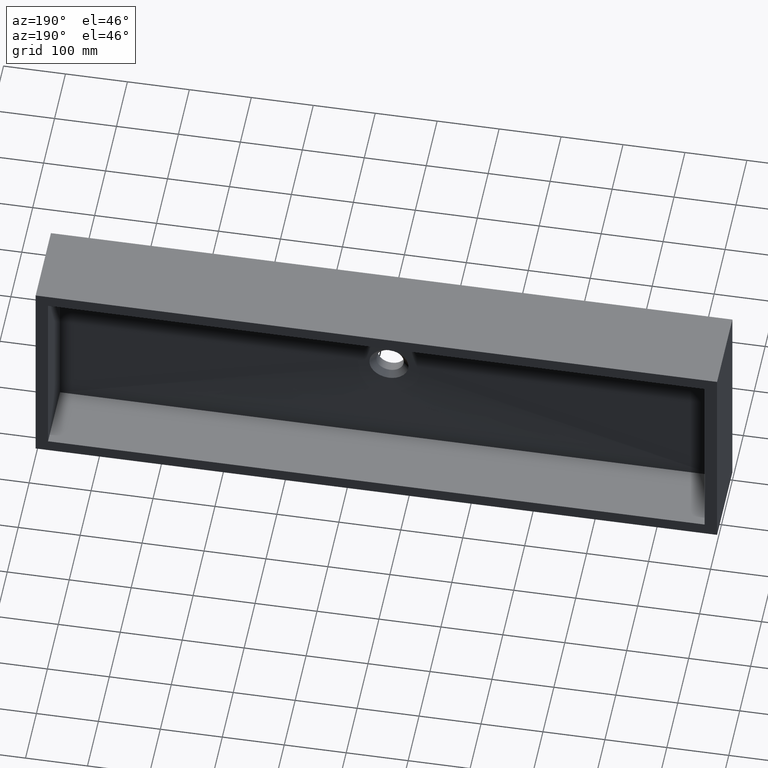
[diagram: clean part render]
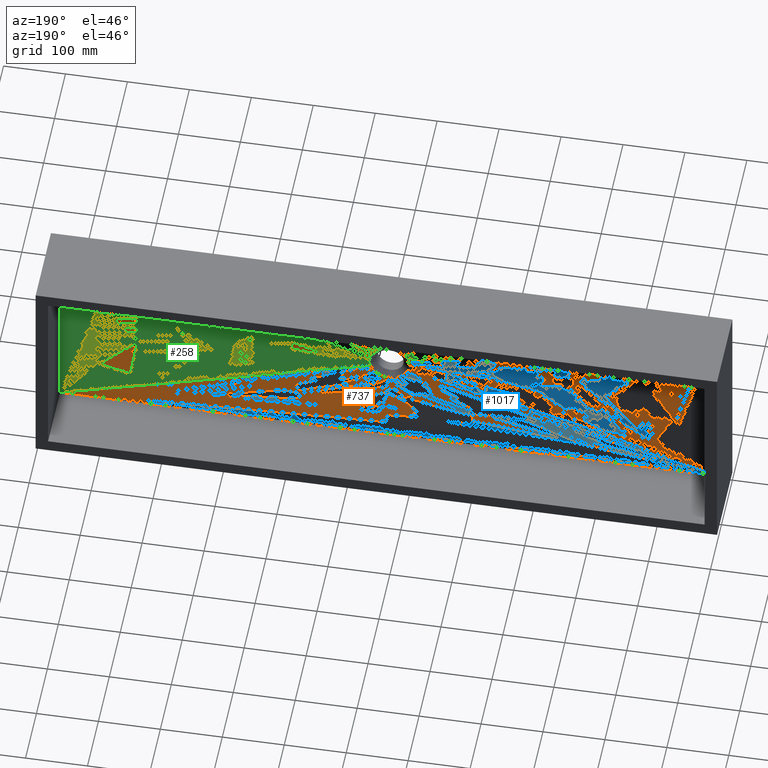
[diagram: same view with three faces highlighted in distinct colors, each labeled with its STEP entity id]
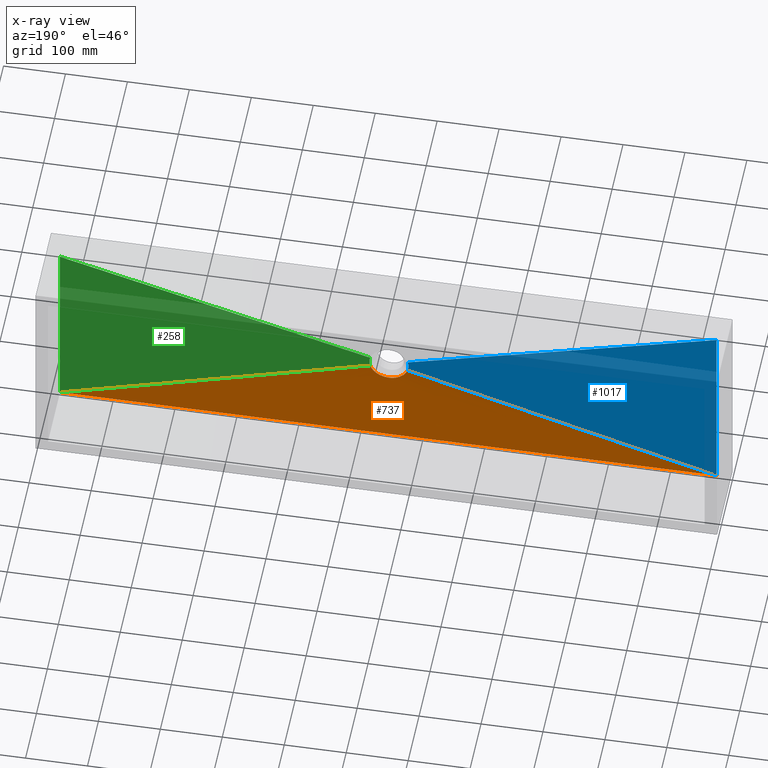
[diagram: x-ray of the same camera — body ghosted, the three highlighted faces saturated]
A machine part, auxiliary view with three faces highlighted in distinct colors.
The next image is the same camera in x-ray (body ghosted, the three faces saturated) — at least one of them is partly hidden behind the body in this view.
Their STEP definitions:

[orange] entity #737 — the highlighted face is a freeform B-spline surface patch.
#10 = CARTESIAN_POINT ( 'NONE',  ( 792.9166666666742500, 30.00000000000000000, -330.0000000000000600 ) ) ;
#23 = CARTESIAN_POINT ( 'NONE',  ( 726.6666666666752700, 30.00000000000000000, -330.0000000000000600 ) ) ;
#29 = CARTESIAN_POINT ( 'NONE',  ( 579.8800017830241100, 25.00000000000000400, -185.0509910874881400 ) ) ;
#69 = FACE_OUTER_BOUND ( 'NONE', #116, .T. ) ;
#75 = VERTEX_POINT ( 'NONE', #594 ) ;
#82 = CARTESIAN_POINT ( 'NONE',  ( 519.7663969215753900, 25.00000000000000000, -183.8419027870864100 ) ) ;
#86 = VECTOR ( 'NONE', #153, 1000.000000000000100 ) ;
#105 = CARTESIAN_POINT ( 'NONE',  ( 559.6316530607051600, 24.99999999999999300, -205.0515115678225000 ) ) ;
#115 = CARTESIAN_POINT ( 'NONE',  ( 527.9166666666761800, 30.00000000000000000, -329.9999999999999400 ) ) ;
#116 = EDGE_LOOP ( 'NONE', ( #443, #715, #272, #596, #230 ) ) ;
#119 = CARTESIAN_POINT ( 'NONE',  ( 577.6864681338539600, 24.99999999999999600, -190.0978275173605400 ) ) ;
#122 = CARTESIAN_POINT ( 'NONE',  ( 550.0000000000094400, 30.00000000000000000, -329.9999999999999400 ) ) ;
#135 = B_SPLINE_CURVE_WITH_KNOTS ( 'NONE', 3,
 ( #991, #188, #177, #576, #105, #1103, #786, #498, #798, #649, #644, #245, #547, #829, #859, #213, #183, #216 ),
 .UNSPECIFIED., .F., .F.,
 ( 4, 2, 2, 2, 2, 2, 2, 2, 4 ),
 ( 0.5000000000000000000, 0.5625000000000000000, 0.6250000000000000000, 0.6875000000000000000, 0.7500000000000000000, 0.8125000000000000000, 0.8750000000000000000, 0.9375000000000000000, 1.000000000000000000 ),
 .UNSPECIFIED. ) ;
#153 = DIRECTION ( 'NONE',  ( -0.9597526761137362700, 0.009602012880673358900, -0.2806823864106209300 ) ) ;
#167 = CARTESIAN_POINT ( 'NONE',  ( 1057.916666666667400, 30.00000000000000400, -329.9999999999999400 ) ) ;
#177 = CARTESIAN_POINT ( 'NONE',  ( 553.9342319692041200, 24.99999999999999300, -206.3141326983282500 ) ) ;
#182 = CARTESIAN_POINT ( 'NONE',  ( 903.3333333333386000, 30.00000000000000000, -330.0000000000000600 ) ) ;
#183 = CARTESIAN_POINT ( 'NONE',  ( 579.8800017830241100, 25.00000000000000400, -185.0509910874881400 ) ) ;
#188 = CARTESIAN_POINT ( 'NONE',  ( 551.9672648684847900, 25.00000000000000000, -206.5000000000001400 ) ) ;
#191 = CARTESIAN_POINT ( 'NONE',  ( 572.0008081009467600, 25.00000000000000400, -197.6095162926251000 ) ) ;
#193 = CARTESIAN_POINT ( 'NONE',  ( 704.5833333333422400, 30.00000000000000000, -330.0000000000000600 ) ) ;
#197 = CARTESIAN_POINT ( 'NONE',  ( 563.1749402788499300, 25.00000000000000000, -203.6754779705848400 ) ) ;
#199 = CARTESIAN_POINT ( 'NONE',  ( 830.1168015392123600, 27.50000000000000400, -256.9209513935431900 ) ) ;
#213 = CARTESIAN_POINT ( 'NONE',  ( 579.4379440952338900, 24.99999999999999300, -186.2938029942921800 ) ) ;
#216 = CARTESIAN_POINT ( 'NONE',  ( 580.2336030784246100, 25.00000000000000000, -183.8419027870864400 ) ) ;
#219 = CARTESIAN_POINT ( 'NONE',  ( 578.3412748311466200, 24.99999999999999300, -188.8171878315881400 ) ) ;
#230 = ORIENTED_EDGE ( 'NONE', *, *, #923, .F. ) ;
#233 = CARTESIAN_POINT ( 'NONE',  ( 269.8831984607877500, 27.50000000000000400, -256.9209513935431900 ) ) ;
#245 = CARTESIAN_POINT ( 'NONE',  ( 575.2324533602090900, 24.99999999999999600, -193.9255402298447000 ) ) ;
#257 = VERTEX_POINT ( 'NONE', #863 ) ;
#261 = CARTESIAN_POINT ( 'NONE',  ( 576.1321890236695300, 24.99999999999998900, -192.6520143412044200 ) ) ;
#263 = CARTESIAN_POINT ( 'NONE',  ( 559.6316530607051600, 24.99999999999999300, -205.0515115678225000 ) ) ;
#267 = CARTESIAN_POINT ( 'NONE',  ( 991.6666666666695800, 30.00000000000000400, -329.9999999999999400 ) ) ;
#271 = CARTESIAN_POINT ( 'NONE',  ( 130.4166666666702700, 30.00000000000000700, -330.0000000000000600 ) ) ;
#272 = ORIENTED_EDGE ( 'NONE', *, *, #289, .T. ) ;
#274 = CARTESIAN_POINT ( 'NONE',  ( 575.2324533602090900, 24.99999999999999600, -193.9255402298447000 ) ) ;
#277 = CARTESIAN_POINT ( 'NONE',  ( 522.3135318661460400, 24.99999999999999300, -190.0978275173605100 ) ) ;
#282 = CARTESIAN_POINT ( 'NONE',  ( 240.8333333333396500, 30.00000000000000700, -330.0000000000000600 ) ) ;
#287 = CARTESIAN_POINT ( 'NONE',  ( 660.4166666666758400, 30.00000000000000000, -330.0000000000000600 ) ) ;
#289 = EDGE_CURVE ( 'NONE', #75, #722, #756, .T. ) ;
#298 = CARTESIAN_POINT ( 'NONE',  ( 505.8333333333428100, 30.00000000000000000, -329.9999999999999400 ) ) ;
#305 = CARTESIAN_POINT ( 'NONE',  ( 549.9999999999998900, 24.99999999999999600, -206.5000000000002000 ) ) ;
#308 = CARTESIAN_POINT ( 'NONE',  ( 546.0657680307959900, 25.00000000000000000, -206.3141326983282200 ) ) ;
#310 = CARTESIAN_POINT ( 'NONE',  ( 540.3683469392949500, 25.00000000000000000, -205.0515115678225000 ) ) ;
#312 = CARTESIAN_POINT ( 'NONE',  ( 542.2333276410685100, 24.99999999999999600, -205.5897350152795600 ) ) ;
#316 = CARTESIAN_POINT ( 'NONE',  ( 548.0327351315149800, 24.99999999999999600, -206.5000000000002600 ) ) ;
#318 = CARTESIAN_POINT ( 'NONE',  ( 530.5997014642238100, 25.00000000000000000, -199.8767803544575100 ) ) ;
#322 = CARTESIAN_POINT ( 'NONE',  ( 1035.833333333334800, 30.00000000000000400, -329.9999999999999400 ) ) ;
#329 = CARTESIAN_POINT ( 'NONE',  ( 532.0343309431588100, 24.99999999999999600, -200.9385622427755900 ) ) ;
#333 = CARTESIAN_POINT ( 'NONE',  ( 527.9991918990533600, 25.00000000000000400, -197.6095162926251300 ) ) ;
#341 = CARTESIAN_POINT ( 'NONE',  ( 523.8678109763305900, 25.00000000000000000, -192.6520143412044500 ) ) ;
#352 = CARTESIAN_POINT ( 'NONE',  ( 580.2336030784246100, 25.00000000000000000, -183.8419027870864400 ) ) ;
#356 = CARTESIAN_POINT ( 'NONE',  ( 859.1666666666731100, 30.00000000000000000, -330.0000000000000600 ) ) ;
#360 = CARTESIAN_POINT ( 'NONE',  ( 1080.000000000000000, 30.00000000000000400, -329.9999999999999400 ) ) ;
#366 = CARTESIAN_POINT ( 'NONE',  ( 523.8678109763305900, 25.00000000000000000, -192.6520143412044500 ) ) ;
#369 = EDGE_CURVE ( 'NONE', #529, #722, #1052, .T. ) ;
#372 = CARTESIAN_POINT ( 'NONE',  ( 520.5620559047663400, 24.99999999999999300, -186.2938029942921200 ) ) ;
#373 = CARTESIAN_POINT ( 'NONE',  ( 521.6587251688532700, 25.00000000000000000, -188.8171878315881400 ) ) ;
#381 = CARTESIAN_POINT ( 'NONE',  ( 535.1469947103861400, 25.00000000000000400, -202.8381484612212900 ) ) ;
#386 = CARTESIAN_POINT ( 'NONE',  ( 461.6666666666759500, 30.00000000000000000, -329.9999999999999400 ) ) ;
#400 = CARTESIAN_POINT ( 'NONE',  ( 526.8330937578005000, 24.99999999999999300, -196.4043741027793100 ) ) ;
#411 = CARTESIAN_POINT ( 'NONE',  ( 64.16666666666822000, 30.00000000000000700, -329.9999999999999400 ) ) ;
#423 = CARTESIAN_POINT ( 'NONE',  ( 551.9672648684847900, 25.00000000000000000, -206.5000000000002000 ) ) ;
#425 = CARTESIAN_POINT ( 'NONE',  ( 329.1666666666745300, 30.00000000000000000, -330.0000000000000600 ) ) ;
#426 = CARTESIAN_POINT ( 'NONE',  ( 536.8250597211501800, 24.99999999999999300, -203.6754779705848600 ) ) ;
#427 = CARTESIAN_POINT ( 'NONE',  ( 524.7675466397910200, 24.99999999999999300, -193.9255402298446700 ) ) ;
#435 = CARTESIAN_POINT ( 'NONE',  ( 524.7675466397910200, 24.99999999999999300, -193.9255402298446700 ) ) ;
#439 = CARTESIAN_POINT ( 'NONE',  ( 535.1469947103861400, 25.00000000000000400, -202.8381484612212900 ) ) ;
#443 = ORIENTED_EDGE ( 'NONE', *, *, #625, .T. ) ;
#449 = CARTESIAN_POINT ( 'NONE',  ( 20.00000000000001800, 30.00000000000000400, -329.9999999999999400 ) ) ;
#469 = CARTESIAN_POINT ( 'NONE',  ( 1080.000000000000000, 30.00000000000002800, -329.9999999999999400 ) ) ;
#473 = LINE ( 'NONE', #233, #86 ) ;
#474 = CARTESIAN_POINT ( 'NONE',  ( 548.0327351315149800, 24.99999999999999600, -206.5000000000002000 ) ) ;
#475 = B_SPLINE_SURFACE_WITH_KNOTS ( 'NONE', 3, 1, ( 
 ( #352, #360 ),
 ( #29, #167 ),
 ( #931, #322 ),
 ( #219, #267 ),
 ( #119, #554 ),
 ( #261, #581 ),
 ( #274, #182 ),
 ( #1111, #356 ),
 ( #191, #883 ),
 ( #909, #10 ),
 ( #1039, #559 ),
 ( #1074, #23 ),
 ( #197, #193 ),
 ( #263, #287 ),
 ( #525, #903 ),
 ( #876, #925 ),
 ( #423, #976 ),
 ( #474, #115 ),
 ( #578, #298 ),
 ( #1131, #386 ),
 ( #583, #735 ),
 ( #1083, #671 ),
 ( #381, #1086 ),
 ( #593, #425 ),
 ( #567, #871 ),
 ( #845, #585 ),
 ( #400, #282 ),
 ( #435, #494 ),
 ( #366, #796 ),
 ( #277, #271 ),
 ( #686, #1088 ),
 ( #610, #411 ),
 ( #1046, #1153 ),
 ( #500, #449 ) ),
 .UNSPECIFIED., .F., .F., .F.,
 ( 4, 2, 2, 2, 2, 2, 2, 2, 2, 2, 2, 2, 2, 2, 2, 2, 4 ),
 ( 2, 2 ),
 ( 0.0000000000000000000, 0.06250000000000000000, 0.1250000000000000000, 0.1875000000000000000, 0.2500000000000000000, 0.3125000000000000000, 0.3750000000000000000, 0.4375000000000000000, 0.5000000000000000000, 0.5625000000000000000, 0.6250000000000000000, 0.6875000000000000000, 0.7500000000000000000, 0.8125000000000000000, 0.8750000000000000000, 0.9375000000000000000, 1.000000000000000000 ),
 ( 0.0000000000000000000, 1.000000000000000000 ),
 .UNSPECIFIED. ) ;
#494 = CARTESIAN_POINT ( 'NONE',  ( 196.6666666666719700, 30.00000000000000700, -330.0000000000000600 ) ) ;
#498 = CARTESIAN_POINT ( 'NONE',  ( 567.9656690568416500, 25.00000000000000400, -200.9385622427756200 ) ) ;
#500 = CARTESIAN_POINT ( 'NONE',  ( 519.7663969215753900, 25.00000000000000000, -183.8419027870864100 ) ) ;
#525 = CARTESIAN_POINT ( 'NONE',  ( 557.7666723589319400, 25.00000000000000000, -205.5897350152796400 ) ) ;
#529 = VERTEX_POINT ( 'NONE', #659 ) ;
#547 = CARTESIAN_POINT ( 'NONE',  ( 576.1321890236695300, 24.99999999999998900, -192.6520143412044200 ) ) ;
#554 = CARTESIAN_POINT ( 'NONE',  ( 969.5833333333369000, 30.00000000000000400, -330.0000000000000000 ) ) ;
#559 = CARTESIAN_POINT ( 'NONE',  ( 770.8333333333412200, 30.00000000000000000, -330.0000000000000600 ) ) ;
#567 = CARTESIAN_POINT ( 'NONE',  ( 530.5997014642238100, 25.00000000000000000, -199.8767803544575100 ) ) ;
#576 = CARTESIAN_POINT ( 'NONE',  ( 557.7666723589319400, 25.00000000000000000, -205.5897350152796400 ) ) ;
#578 = CARTESIAN_POINT ( 'NONE',  ( 546.0657680307958800, 25.00000000000000000, -206.3141326983282200 ) ) ;
#581 = CARTESIAN_POINT ( 'NONE',  ( 925.4166666666714000, 30.00000000000000400, -330.0000000000000600 ) ) ;
#583 = CARTESIAN_POINT ( 'NONE',  ( 540.3683469392949500, 25.00000000000000000, -205.0515115678225000 ) ) ;
#585 = CARTESIAN_POINT ( 'NONE',  ( 262.9166666666733900, 30.00000000000000700, -330.0000000000000600 ) ) ;
#593 = CARTESIAN_POINT ( 'NONE',  ( 532.0343309431588100, 24.99999999999999600, -200.9385622427755900 ) ) ;
#594 = CARTESIAN_POINT ( 'NONE',  ( 580.2336030784246100, 25.00000000000000000, -183.8419027870864400 ) ) ;
#596 = ORIENTED_EDGE ( 'NONE', *, *, #369, .F. ) ;
#597 = CARTESIAN_POINT ( 'NONE',  ( 526.8330937578005000, 24.99999999999999300, -196.4043741027793100 ) ) ;
#610 = CARTESIAN_POINT ( 'NONE',  ( 520.5620559047663400, 24.99999999999999300, -186.2938029942921200 ) ) ;
#625 = EDGE_CURVE ( 'NONE', #636, #257, #1047, .T. ) ;
#636 = VERTEX_POINT ( 'NONE', #82 ) ;
#644 = CARTESIAN_POINT ( 'NONE',  ( 573.1669062421995000, 24.99999999999999300, -196.4043741027793100 ) ) ;
#649 = CARTESIAN_POINT ( 'NONE',  ( 572.0008081009467600, 25.00000000000000400, -197.6095162926251000 ) ) ;
#659 = CARTESIAN_POINT ( 'NONE',  ( 20.00000000000001800, 30.00000000000002800, -329.9999999999999400 ) ) ;
#671 = CARTESIAN_POINT ( 'NONE',  ( 395.4166666666753300, 30.00000000000000000, -330.0000000000000600 ) ) ;
#686 = CARTESIAN_POINT ( 'NONE',  ( 521.6587251688532700, 25.00000000000000000, -188.8171878315881400 ) ) ;
#705 = DIRECTION ( 'NONE',  ( 0.9597526761137362700, 0.009602012880673358900, -0.2806823864106208800 ) ) ;
#715 = ORIENTED_EDGE ( 'NONE', *, *, #1060, .T. ) ;
#722 = VERTEX_POINT ( 'NONE', #469 ) ;
#735 = CARTESIAN_POINT ( 'NONE',  ( 439.5833333333424100, 30.00000000000000000, -330.0000000000000000 ) ) ;
#737 = ADVANCED_FACE ( 'NONE', ( #69 ), #475, .F. ) ;
#756 = LINE ( 'NONE', #199, #822 ) ;
#786 = CARTESIAN_POINT ( 'NONE',  ( 564.8530052896138600, 25.00000000000000400, -202.8381484612212700 ) ) ;
#791 = VECTOR ( 'NONE', #1138, 1000.000000000000000 ) ;
#796 = CARTESIAN_POINT ( 'NONE',  ( 174.5833333333381200, 30.00000000000001100, -330.0000000000000600 ) ) ;
#798 = CARTESIAN_POINT ( 'NONE',  ( 569.4002985357764100, 25.00000000000000400, -199.8767803544575100 ) ) ;
#822 = VECTOR ( 'NONE', #705, 1000.000000000000100 ) ;
#829 = CARTESIAN_POINT ( 'NONE',  ( 577.6864681338539600, 24.99999999999999600, -190.0978275173605400 ) ) ;
#839 = CARTESIAN_POINT ( 'NONE',  ( 520.1199982169761100, 25.00000000000000400, -185.0509910874882000 ) ) ;
#845 = CARTESIAN_POINT ( 'NONE',  ( 527.9991918990533600, 25.00000000000000400, -197.6095162926251300 ) ) ;
#859 = CARTESIAN_POINT ( 'NONE',  ( 578.3412748311466200, 24.99999999999999300, -188.8171878315881400 ) ) ;
#863 = CARTESIAN_POINT ( 'NONE',  ( 549.9999999999998900, 24.99999999999999600, -206.5000000000002000 ) ) ;
#871 = CARTESIAN_POINT ( 'NONE',  ( 307.0833333333408700, 30.00000000000000400, -330.0000000000000600 ) ) ;
#876 = CARTESIAN_POINT ( 'NONE',  ( 553.9342319692041200, 24.99999999999999300, -206.3141326983282500 ) ) ;
#883 = CARTESIAN_POINT ( 'NONE',  ( 837.0833333333401900, 30.00000000000000000, -330.0000000000000600 ) ) ;
#893 = CARTESIAN_POINT ( 'NONE',  ( 522.3135318661460400, 24.99999999999999300, -190.0978275173605100 ) ) ;
#903 = CARTESIAN_POINT ( 'NONE',  ( 638.3333333333426900, 30.00000000000000000, -330.0000000000000600 ) ) ;
#909 = CARTESIAN_POINT ( 'NONE',  ( 569.4002985357764100, 25.00000000000000400, -199.8767803544575100 ) ) ;
#923 = EDGE_CURVE ( 'NONE', #636, #529, #473, .T. ) ;
#925 = CARTESIAN_POINT ( 'NONE',  ( 594.1666666666761800, 30.00000000000000000, -329.9999999999999400 ) ) ;
#931 = CARTESIAN_POINT ( 'NONE',  ( 579.4379440952338900, 24.99999999999999300, -186.2938029942921800 ) ) ;
#976 = CARTESIAN_POINT ( 'NONE',  ( 572.0833333333428100, 30.00000000000000000, -329.9999999999999400 ) ) ;
#991 = CARTESIAN_POINT ( 'NONE',  ( 549.9999999999998900, 24.99999999999999600, -206.5000000000002000 ) ) ;
#1039 = CARTESIAN_POINT ( 'NONE',  ( 567.9656690568416500, 25.00000000000000400, -200.9385622427756200 ) ) ;
#1046 = CARTESIAN_POINT ( 'NONE',  ( 520.1199982169761100, 25.00000000000000400, -185.0509910874882000 ) ) ;
#1047 = B_SPLINE_CURVE_WITH_KNOTS ( 'NONE', 3,
 ( #1075, #839, #372, #373, #893, #341, #427, #597, #333, #318, #329, #439, #426, #310, #312, #308, #316, #305 ),
 .UNSPECIFIED., .F., .F.,
 ( 4, 2, 2, 2, 2, 2, 2, 2, 4 ),
 ( 0.0000000000000000000, 0.06250000000000000000, 0.1250000000000000000, 0.1875000000000000000, 0.2500000000000000000, 0.3125000000000000000, 0.3750000000000000000, 0.4375000000000000000, 0.5000000000000000000 ),
 .UNSPECIFIED. ) ;
#1052 = LINE ( 'NONE', #122, #791 ) ;
#1060 = EDGE_CURVE ( 'NONE', #257, #75, #135, .T. ) ;
#1074 = CARTESIAN_POINT ( 'NONE',  ( 564.8530052896138600, 25.00000000000000400, -202.8381484612212700 ) ) ;
#1075 = CARTESIAN_POINT ( 'NONE',  ( 519.7663969215753900, 25.00000000000000000, -183.8419027870864100 ) ) ;
#1083 = CARTESIAN_POINT ( 'NONE',  ( 536.8250597211501800, 24.99999999999999300, -203.6754779705848600 ) ) ;
#1086 = CARTESIAN_POINT ( 'NONE',  ( 373.3333333333417800, 30.00000000000000000, -330.0000000000000600 ) ) ;
#1088 = CARTESIAN_POINT ( 'NONE',  ( 108.3333333333362800, 30.00000000000000700, -330.0000000000000600 ) ) ;
#1103 = CARTESIAN_POINT ( 'NONE',  ( 563.1749402788499300, 25.00000000000000000, -203.6754779705848400 ) ) ;
#1111 = CARTESIAN_POINT ( 'NONE',  ( 573.1669062421995000, 24.99999999999999300, -196.4043741027793100 ) ) ;
#1131 = CARTESIAN_POINT ( 'NONE',  ( 542.2333276410685100, 24.99999999999999600, -205.5897350152795600 ) ) ;
#1138 = DIRECTION ( 'NONE',  ( 1.000000000000000000, -0.0000000000000000000, -0.0000000000000000000 ) ) ;
#1153 = CARTESIAN_POINT ( 'NONE',  ( 42.08333333333413900, 30.00000000000000700, -329.9999999999999400 ) ) ;

[blue] entity #1017 — the highlighted face is a freeform B-spline surface patch.
#15 = CARTESIAN_POINT ( 'NONE',  ( 519.7663969215753900, 25.00000000000000000, -183.8419027870864100 ) ) ;
#47 = EDGE_CURVE ( 'NONE', #243, #301, #49, .T. ) ;
#49 = B_SPLINE_CURVE_WITH_KNOTS ( 'NONE', 3,
 ( #512, #265, #321, #128, #784, #1142, #713, #453, #759, #179 ),
 .UNSPECIFIED., .F., .F.,
 ( 4, 2, 2, 2, 4 ),
 ( 0.0000000000000000000, 0.2500000000000000000, 0.5000000000000000000, 0.7500000000000000000, 1.000000000000000000 ),
 .UNSPECIFIED. ) ;
#94 = ORIENTED_EDGE ( 'NONE', *, *, #47, .T. ) ;
#128 = CARTESIAN_POINT ( 'NONE',  ( 518.6082418723955200, 24.99999999999999300, -178.0076832610179200 ) ) ;
#141 = EDGE_LOOP ( 'NONE', ( #94, #824, #370, #954 ) ) ;
#160 = VECTOR ( 'NONE', #376, 1000.000000000000000 ) ;
#165 = CARTESIAN_POINT ( 'NONE',  ( 19.99999999999999600, 30.00000000000000000, -123.3333333333330200 ) ) ;
#179 = CARTESIAN_POINT ( 'NONE',  ( 519.7663969215753900, 25.00000000000000000, -166.1580972129135900 ) ) ;
#201 = VECTOR ( 'NONE', #599, 1000.000000000000100 ) ;
#243 = VERTEX_POINT ( 'NONE', #15 ) ;
#259 = LINE ( 'NONE', #363, #160 ) ;
#265 = CARTESIAN_POINT ( 'NONE',  ( 519.3527501231822000, 25.00000000000000400, -182.4274976054843800 ) ) ;
#285 = CARTESIAN_POINT ( 'NONE',  ( 19.99999999999999600, 30.00000000000000000, -304.1666666666664600 ) ) ;
#301 = VERTEX_POINT ( 'NONE', #992 ) ;
#306 = DIRECTION ( 'NONE',  ( -0.9597526761137362700, 0.009602012880673358900, -0.2806823864106209300 ) ) ;
#321 = CARTESIAN_POINT ( 'NONE',  ( 519.0346489087027100, 25.00000000000000400, -180.9695618543823600 ) ) ;
#363 = CARTESIAN_POINT ( 'NONE',  ( 19.99999999999999600, 30.00000000000000000, -174.9999999999996300 ) ) ;
#368 = CARTESIAN_POINT ( 'NONE',  ( 518.6082418723955200, 24.99999999999999300, -178.0076832610179200 ) ) ;
#370 = ORIENTED_EDGE ( 'NONE', *, *, #808, .T. ) ;
#376 = DIRECTION ( 'NONE',  ( 1.343011723336875100E-016, 1.343011723336875100E-016, -1.000000000000000000 ) ) ;
#385 = CARTESIAN_POINT ( 'NONE',  ( 518.4999999999998900, 25.00000000000000400, -176.5038807818566500 ) ) ;
#395 = LINE ( 'NONE', #448, #417 ) ;
#417 = VECTOR ( 'NONE', #306, 1000.000000000000100 ) ;
#448 = CARTESIAN_POINT ( 'NONE',  ( 269.8831984607877500, 27.50000000000000400, -256.9209513935431900 ) ) ;
#453 = CARTESIAN_POINT ( 'NONE',  ( 519.0346489087027100, 25.00000000000000400, -169.0304381456176700 ) ) ;
#478 = CARTESIAN_POINT ( 'NONE',  ( 20.00000000000000000, 30.00000000000000400, -20.00000000000001800 ) ) ;
#493 = CARTESIAN_POINT ( 'NONE',  ( 19.99999999999999600, 30.00000000000000000, -71.66666666666647200 ) ) ;
#512 = CARTESIAN_POINT ( 'NONE',  ( 519.7663969215753900, 25.00000000000000000, -183.8419027870864100 ) ) ;
#533 = CARTESIAN_POINT ( 'NONE',  ( 20.00000000000001800, 30.00000000000000400, -329.9999999999999400 ) ) ;
#552 = CARTESIAN_POINT ( 'NONE',  ( 19.99999999999999600, 30.00000000000000000, -200.8333333333329400 ) ) ;
#563 = EDGE_CURVE ( 'NONE', #985, #301, #643, .T. ) ;
#569 = CARTESIAN_POINT ( 'NONE',  ( 519.3527501231822000, 25.00000000000000400, -182.4274976054843800 ) ) ;
#570 = CARTESIAN_POINT ( 'NONE',  ( 20.00000000000000000, 30.00000000000000400, -20.00000000000000000 ) ) ;
#599 = DIRECTION ( 'NONE',  ( 0.9597526761137362700, -0.009602012880673358900, -0.2806823864106210400 ) ) ;
#638 = CARTESIAN_POINT ( 'NONE',  ( 518.6082418723955200, 25.00000000000000400, -171.9923167389820000 ) ) ;
#641 = CARTESIAN_POINT ( 'NONE',  ( 19.99999999999999600, 30.00000000000000000, -278.3333333333330900 ) ) ;
#643 = LINE ( 'NONE', #1070, #201 ) ;
#690 = FACE_OUTER_BOUND ( 'NONE', #141, .T. ) ;
#707 = CARTESIAN_POINT ( 'NONE',  ( 519.0346489087027100, 25.00000000000000400, -180.9695618543823600 ) ) ;
#709 = CARTESIAN_POINT ( 'NONE',  ( 19.99999999999999600, 30.00000000000000000, -149.1666666666663200 ) ) ;
#713 = CARTESIAN_POINT ( 'NONE',  ( 518.6082418723955200, 25.00000000000000400, -171.9923167389820000 ) ) ;
#720 = CARTESIAN_POINT ( 'NONE',  ( 19.99999999999999600, 30.00000000000000000, -226.6666666666662900 ) ) ;
#721 = CARTESIAN_POINT ( 'NONE',  ( 518.5000000000000000, 25.00000000000000400, -173.4961192181434600 ) ) ;
#728 = CARTESIAN_POINT ( 'NONE',  ( 20.00000000000000000, 30.00000000000000400, -329.9999999999999400 ) ) ;
#730 = CARTESIAN_POINT ( 'NONE',  ( 519.7663969215753900, 25.00000000000000000, -183.8419027870864100 ) ) ;
#759 = CARTESIAN_POINT ( 'NONE',  ( 519.3527501231825500, 25.00000000000000400, -167.5725023945156200 ) ) ;
#784 = CARTESIAN_POINT ( 'NONE',  ( 518.4999999999998900, 25.00000000000000400, -176.5038807818566500 ) ) ;
#808 = EDGE_CURVE ( 'NONE', #985, #980, #259, .T. ) ;
#824 = ORIENTED_EDGE ( 'NONE', *, *, #563, .F. ) ;
#849 = B_SPLINE_SURFACE_WITH_KNOTS ( 'NONE', 3, 1, ( 
 ( #730, #728 ),
 ( #569, #285 ),
 ( #707, #641 ),
 ( #368, #720 ),
 ( #385, #552 ),
 ( #721, #709 ),
 ( #638, #165 ),
 ( #897, #493 ),
 ( #942, #1140 ),
 ( #1159, #478 ) ),
 .UNSPECIFIED., .F., .F., .F.,
 ( 4, 2, 2, 2, 4 ),
 ( 2, 2 ),
 ( 0.0000000000000000000, 0.2500000000000000000, 0.5000000000000000000, 0.7500000000000000000, 1.000000000000000000 ),
 ( 0.0000000000000000000, 1.000000000000000000 ),
 .UNSPECIFIED. ) ;
#897 = CARTESIAN_POINT ( 'NONE',  ( 519.0346489087027100, 25.00000000000000400, -169.0304381456176700 ) ) ;
#942 = CARTESIAN_POINT ( 'NONE',  ( 519.3527501231825500, 25.00000000000000400, -167.5725023945156200 ) ) ;
#949 = EDGE_CURVE ( 'NONE', #243, #980, #395, .T. ) ;
#954 = ORIENTED_EDGE ( 'NONE', *, *, #949, .F. ) ;
#980 = VERTEX_POINT ( 'NONE', #533 ) ;
#985 = VERTEX_POINT ( 'NONE', #570 ) ;
#992 = CARTESIAN_POINT ( 'NONE',  ( 519.7663969215753900, 25.00000000000000000, -166.1580972129135900 ) ) ;
#1017 = ADVANCED_FACE ( 'NONE', ( #690 ), #849, .T. ) ;
#1070 = CARTESIAN_POINT ( 'NONE',  ( 269.8831984607877500, 27.50000000000000400, -93.07904860645678000 ) ) ;
#1140 = CARTESIAN_POINT ( 'NONE',  ( 19.99999999999999600, 30.00000000000000000, -45.83333333333323600 ) ) ;
#1142 = CARTESIAN_POINT ( 'NONE',  ( 518.5000000000000000, 25.00000000000000400, -173.4961192181434600 ) ) ;
#1159 = CARTESIAN_POINT ( 'NONE',  ( 519.7663969215753900, 25.00000000000000000, -166.1580972129135900 ) ) ;

[green] entity #258 — the highlighted face is a freeform B-spline surface patch.
#16 = B_SPLINE_SURFACE_WITH_KNOTS ( 'NONE', 3, 1, ( 
 ( #495, #802 ),
 ( #754, #775 ),
 ( #406, #611 ),
 ( #145, #203 ),
 ( #137, #32 ),
 ( #76, #46 ),
 ( #1147, #68 ),
 ( #544, #586 ),
 ( #1117, #126 ),
 ( #31, #171 ) ),
 .UNSPECIFIED., .F., .F., .F.,
 ( 4, 2, 2, 2, 4 ),
 ( 2, 2 ),
 ( 0.0000000000000000000, 0.2500000000000000000, 0.5000000000000000000, 0.7500000000000000000, 1.000000000000000000 ),
 ( 0.0000000000000000000, 1.000000000000000000 ),
 .UNSPECIFIED. ) ;
#22 = VERTEX_POINT ( 'NONE', #143 ) ;
#31 = CARTESIAN_POINT ( 'NONE',  ( 580.2336030784246100, 25.00000000000000000, -183.8419027870864400 ) ) ;
#32 = CARTESIAN_POINT ( 'NONE',  ( 1080.000000000000000, 30.00000000000000000, -149.1666666666666000 ) ) ;
#37 = EDGE_LOOP ( 'NONE', ( #144, #1089, #899, #234 ) ) ;
#46 = CARTESIAN_POINT ( 'NONE',  ( 1080.000000000000000, 30.00000000000000000, -200.8333333333332600 ) ) ;
#68 = CARTESIAN_POINT ( 'NONE',  ( 1080.000000000000000, 30.00000000000000000, -226.6666666666666000 ) ) ;
#75 = VERTEX_POINT ( 'NONE', #594 ) ;
#76 = CARTESIAN_POINT ( 'NONE',  ( 581.5000000000003400, 25.00000000000000400, -176.5038807818566500 ) ) ;
#123 = CARTESIAN_POINT ( 'NONE',  ( 1080.000000000000000, 30.00000000000000000, -174.9999999999999400 ) ) ;
#126 = CARTESIAN_POINT ( 'NONE',  ( 1080.000000000000000, 30.00000000000000000, -304.1666666666665700 ) ) ;
#137 = CARTESIAN_POINT ( 'NONE',  ( 581.5000000000002300, 25.00000000000000400, -173.4961192181434100 ) ) ;
#143 = CARTESIAN_POINT ( 'NONE',  ( 1080.000000000000000, 30.00000000000002800, -20.00000000000000000 ) ) ;
#144 = ORIENTED_EDGE ( 'NONE', *, *, #861, .T. ) ;
#145 = CARTESIAN_POINT ( 'NONE',  ( 581.3917581276043600, 24.99999999999999300, -171.9923167389819700 ) ) ;
#171 = CARTESIAN_POINT ( 'NONE',  ( 1080.000000000000000, 30.00000000000000400, -329.9999999999999400 ) ) ;
#199 = CARTESIAN_POINT ( 'NONE',  ( 830.1168015392123600, 27.50000000000000400, -256.9209513935431900 ) ) ;
#203 = CARTESIAN_POINT ( 'NONE',  ( 1080.000000000000000, 30.00000000000000000, -123.3333333333333000 ) ) ;
#229 = CARTESIAN_POINT ( 'NONE',  ( 580.6472498768176800, 25.00000000000000400, -182.4274976054844000 ) ) ;
#234 = ORIENTED_EDGE ( 'NONE', *, *, #289, .F. ) ;
#239 = DIRECTION ( 'NONE',  ( -0.0000000000000000000, 1.343011723336883400E-016, 1.000000000000000000 ) ) ;
#258 = ADVANCED_FACE ( 'NONE', ( #490 ), #16, .F. ) ;
#264 = DIRECTION ( 'NONE',  ( 0.9597526761137362700, 0.009602012880673358900, 0.2806823864106210400 ) ) ;
#289 = EDGE_CURVE ( 'NONE', #75, #722, #756, .T. ) ;
#406 = CARTESIAN_POINT ( 'NONE',  ( 580.9653510912977500, 25.00000000000000400, -169.0304381456176400 ) ) ;
#410 = LINE ( 'NONE', #575, #1092 ) ;
#469 = CARTESIAN_POINT ( 'NONE',  ( 1080.000000000000000, 30.00000000000002800, -329.9999999999999400 ) ) ;
#490 = FACE_OUTER_BOUND ( 'NONE', #37, .T. ) ;
#495 = CARTESIAN_POINT ( 'NONE',  ( 580.2336030784246100, 25.00000000000000000, -166.1580972129135900 ) ) ;
#535 = CARTESIAN_POINT ( 'NONE',  ( 580.9653510912976300, 25.00000000000000400, -180.9695618543824200 ) ) ;
#544 = CARTESIAN_POINT ( 'NONE',  ( 580.9653510912976300, 25.00000000000000400, -180.9695618543824200 ) ) ;
#575 = CARTESIAN_POINT ( 'NONE',  ( 830.1168015392123600, 27.50000000000000400, -93.07904860645678000 ) ) ;
#586 = CARTESIAN_POINT ( 'NONE',  ( 1080.000000000000000, 30.00000000000000000, -278.3333333333332600 ) ) ;
#594 = CARTESIAN_POINT ( 'NONE',  ( 580.2336030784246100, 25.00000000000000000, -183.8419027870864400 ) ) ;
#611 = CARTESIAN_POINT ( 'NONE',  ( 1080.000000000000000, 30.00000000000000000, -71.66666666666665700 ) ) ;
#628 = CARTESIAN_POINT ( 'NONE',  ( 581.3917581276044800, 25.00000000000000400, -178.0076832610179700 ) ) ;
#705 = DIRECTION ( 'NONE',  ( 0.9597526761137362700, 0.009602012880673358900, -0.2806823864106208800 ) ) ;
#710 = EDGE_CURVE ( 'NONE', #753, #22, #410, .T. ) ;
#722 = VERTEX_POINT ( 'NONE', #469 ) ;
#729 = LINE ( 'NONE', #123, #1049 ) ;
#753 = VERTEX_POINT ( 'NONE', #1121 ) ;
#754 = CARTESIAN_POINT ( 'NONE',  ( 580.6472498768175700, 25.00000000000000400, -167.5725023945156200 ) ) ;
#756 = LINE ( 'NONE', #199, #822 ) ;
#775 = CARTESIAN_POINT ( 'NONE',  ( 1080.000000000000000, 30.00000000000000000, -45.83333333333332100 ) ) ;
#802 = CARTESIAN_POINT ( 'NONE',  ( 1080.000000000000000, 30.00000000000000400, -20.00000000000000000 ) ) ;
#812 = B_SPLINE_CURVE_WITH_KNOTS ( 'NONE', 3,
 ( #999, #229, #535, #628, #1154, #1125, #826, #1134, #1054, #1032 ),
 .UNSPECIFIED., .F., .F.,
 ( 4, 2, 2, 2, 4 ),
 ( 0.0000000000000000000, 0.2500000000000000000, 0.5000000000000000000, 0.7500000000000000000, 1.000000000000000000 ),
 .UNSPECIFIED. ) ;
#815 = EDGE_CURVE ( 'NONE', #722, #22, #729, .T. ) ;
#822 = VECTOR ( 'NONE', #705, 1000.000000000000100 ) ;
#826 = CARTESIAN_POINT ( 'NONE',  ( 581.3917581276043600, 24.99999999999999300, -171.9923167389819700 ) ) ;
#861 = EDGE_CURVE ( 'NONE', #75, #753, #812, .T. ) ;
#899 = ORIENTED_EDGE ( 'NONE', *, *, #815, .F. ) ;
#999 = CARTESIAN_POINT ( 'NONE',  ( 580.2336030784246100, 25.00000000000000000, -183.8419027870864400 ) ) ;
#1032 = CARTESIAN_POINT ( 'NONE',  ( 580.2336030784246100, 25.00000000000000000, -166.1580972129135900 ) ) ;
#1049 = VECTOR ( 'NONE', #239, 1000.000000000000000 ) ;
#1054 = CARTESIAN_POINT ( 'NONE',  ( 580.6472498768175700, 25.00000000000000400, -167.5725023945156200 ) ) ;
#1089 = ORIENTED_EDGE ( 'NONE', *, *, #710, .T. ) ;
#1092 = VECTOR ( 'NONE', #264, 1000.000000000000100 ) ;
#1117 = CARTESIAN_POINT ( 'NONE',  ( 580.6472498768176800, 25.00000000000000400, -182.4274976054844000 ) ) ;
#1121 = CARTESIAN_POINT ( 'NONE',  ( 580.2336030784246100, 25.00000000000000000, -166.1580972129135900 ) ) ;
#1125 = CARTESIAN_POINT ( 'NONE',  ( 581.5000000000002300, 25.00000000000000400, -173.4961192181434100 ) ) ;
#1134 = CARTESIAN_POINT ( 'NONE',  ( 580.9653510912977500, 25.00000000000000400, -169.0304381456176400 ) ) ;
#1147 = CARTESIAN_POINT ( 'NONE',  ( 581.3917581276044800, 25.00000000000000400, -178.0076832610179700 ) ) ;
#1154 = CARTESIAN_POINT ( 'NONE',  ( 581.5000000000003400, 25.00000000000000400, -176.5038807818566500 ) ) ;